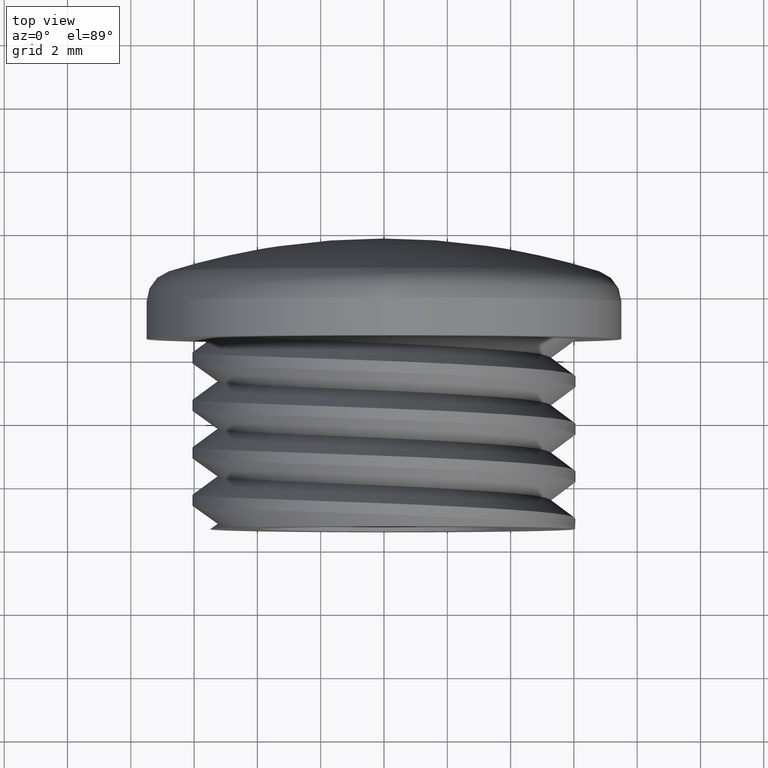
[diagram: clean part render]
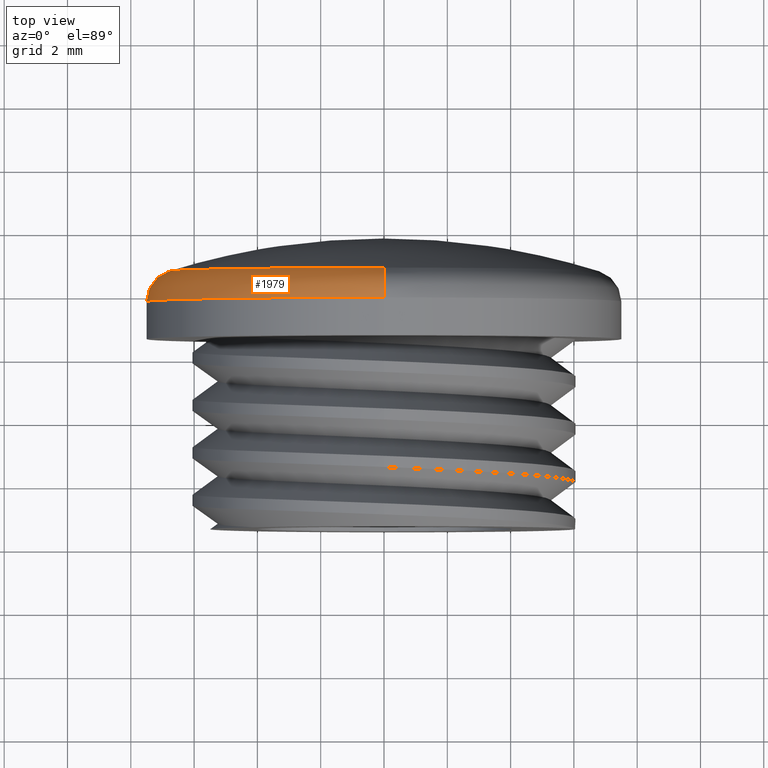
[diagram: same view with one face highlighted and labeled with its STEP entity id]
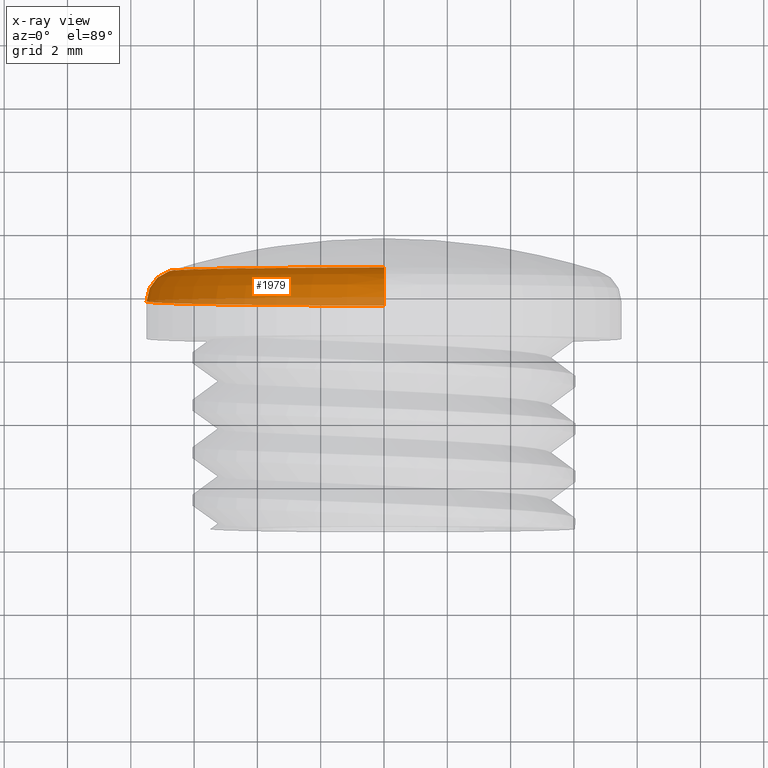
[diagram: x-ray of the same camera — body ghosted, the highlighted face saturated]
A machine part, top view. The second image highlights one B-rep face of the part: STEP entity #1979.
The next image is the same camera in x-ray: the body ghosted, the highlighted face saturated — about 18% of this face is hidden behind the body in this view.
In plain terms, the highlighted toroidal blend (fillet) surface has major radius 6.5 mm and minor (blend) radius 1 mm.
Its self-contained STEP definition (entity closure, byte-faithful):
#873 = DIRECTION ( 'NONE',  ( 0.0000000000000000000, 0.0000000000000000000, -1.000000000000000000 ) ) ;
#875 = CARTESIAN_POINT ( 'NONE',  ( -4.592425496802575900E-016, 8.736994719374898500, 0.0000000000000000000 ) ) ;
#882 = DIRECTION ( 'NONE',  ( -0.0000000000000000000, -1.000000000000000000, 0.0000000000000000000 ) ) ;
#889 = DIRECTION ( 'NONE',  ( -0.0000000000000000000, -1.000000000000000000, 0.0000000000000000000 ) ) ;
#900 = DIRECTION ( 'NONE',  ( 0.0000000000000000000, 0.0000000000000000000, -1.000000000000000000 ) ) ;
#910 = CARTESIAN_POINT ( 'NONE',  ( -4.592425496802575900E-016, 8.736994719374898500, 0.0000000000000000000 ) ) ;
#1070 = DIRECTION ( 'NONE',  ( -0.0000000000000000000, -1.000000000000000000, -0.0000000000000000000 ) ) ;
#1081 = CARTESIAN_POINT ( 'NONE',  ( 0.0000000000000000000, 7.782273396792667200, 0.0000000000000000000 ) ) ;
#1082 = DIRECTION ( 'NONE',  ( 0.0000000000000000000, 0.0000000000000000000, -1.000000000000000000 ) ) ;
#1087 = DIRECTION ( 'NONE',  ( 0.0000000000000000000, 0.0000000000000000000, 1.000000000000000000 ) ) ;
#1104 = DIRECTION ( 'NONE',  ( 1.000000000000000000, -0.0000000000000000000, -1.224646799147353200E-016 ) ) ;
#1105 = DIRECTION ( 'NONE',  ( -1.224646799147353200E-016, 0.0000000000000000000, -1.000000000000000000 ) ) ;
#1120 = CARTESIAN_POINT ( 'NONE',  ( -4.592425496802575900E-016, 7.782273396792667200, -6.499999999999997300 ) ) ;
#1121 = DIRECTION ( 'NONE',  ( -1.000000000000000000, 0.0000000000000000000, 0.0000000000000000000 ) ) ;
#1123 = CARTESIAN_POINT ( 'NONE',  ( 3.367778697655216600E-016, 7.782273396792667200, 6.499999999999997300 ) ) ;
#1136 = FACE_OUTER_BOUND ( 'NONE', #1620, .T. ) ;
#1160 = DIRECTION ( 'NONE',  ( -0.0000000000000000000, -1.000000000000000000, 0.0000000000000000000 ) ) ;
#1171 = DIRECTION ( 'NONE',  ( 0.0000000000000000000, 0.0000000000000000000, -1.000000000000000000 ) ) ;
#1172 = CARTESIAN_POINT ( 'NONE',  ( -4.592425496802575900E-016, 7.782273396792667200, 0.0000000000000000000 ) ) ;
#1620 = EDGE_LOOP ( 'NONE', ( #1733, #1689, #1798, #1777, #1797 ) ) ;
#1689 = ORIENTED_EDGE ( 'NONE', *, *, #1947, .T. ) ;
#1733 = ORIENTED_EDGE ( 'NONE', *, *, #1966, .F. ) ;
#1761 = VERTEX_POINT ( 'NONE', #1800 ) ;
#1777 = ORIENTED_EDGE ( 'NONE', *, *, #1973, .T. ) ;
#1788 = VERTEX_POINT ( 'NONE', #1861 ) ;
#1789 = VERTEX_POINT ( 'NONE', #1851 ) ;
#1797 = ORIENTED_EDGE ( 'NONE', *, *, #1959, .F. ) ;
#1798 = ORIENTED_EDGE ( 'NONE', *, *, #1942, .T. ) ;
#1800 = CARTESIAN_POINT ( 'NONE',  ( 4.592425496802575000E-016, 7.782273396792667200, 7.500000000000001800 ) ) ;
#1840 = VERTEX_POINT ( 'NONE', #1884 ) ;
#1841 = VERTEX_POINT ( 'NONE', #1872 ) ;
#1851 = CARTESIAN_POINT ( 'NONE',  ( -4.592425496802575900E-016, 8.736994719374898500, -6.797501590259358300 ) ) ;
#1861 = CARTESIAN_POINT ( 'NONE',  ( -6.797501590259350300, 8.736994719374898500, 0.0000000000000000000 ) ) ;
#1872 = CARTESIAN_POINT ( 'NONE',  ( -4.592425496802575900E-016, 7.782273396792667200, -7.500000000000001800 ) ) ;
#1884 = CARTESIAN_POINT ( 'NONE',  ( 4.162269282355084900E-016, 8.736994719374898500, 6.797501590259358300 ) ) ;
#1942 = EDGE_CURVE ( 'NONE', #1788, #1789, #2098, .T. ) ;
#1947 = EDGE_CURVE ( 'NONE', #1840, #1788, #2086, .T. ) ;
#1959 = EDGE_CURVE ( 'NONE', #1761, #1841, #2117, .T. ) ;
#1966 = EDGE_CURVE ( 'NONE', #1840, #1761, #2105, .T. ) ;
#1973 = EDGE_CURVE ( 'NONE', #1789, #1841, #2125, .T. ) ;
#1979 = ADVANCED_FACE ( 'NONE', ( #1136 ), #2122, .T. ) ;
#2086 = CIRCLE ( 'NONE', #2103, 6.797501590259358300 ) ;
#2098 = CIRCLE ( 'NONE', #2099, 6.797501590259358300 ) ;
#2099 = AXIS2_PLACEMENT_3D ( 'NONE', #910, #889, #873 ) ;
#2103 = AXIS2_PLACEMENT_3D ( 'NONE', #875, #882, #900 ) ;
#2105 = CIRCLE ( 'NONE', #2123, 1.000000000000006000 ) ;
#2117 = CIRCLE ( 'NONE', #2138, 7.500000000000000000 ) ;
#2122 = TOROIDAL_SURFACE ( 'NONE', #2140, 6.499999999999997300, 1.000000000000006000 ) ;
#2123 = AXIS2_PLACEMENT_3D ( 'NONE', #1123, #1104, #1105 ) ;
#2125 = CIRCLE ( 'NONE', #2129, 1.000000000000006000 ) ;
#2129 = AXIS2_PLACEMENT_3D ( 'NONE', #1120, #1121, #1087 ) ;
#2138 = AXIS2_PLACEMENT_3D ( 'NONE', #1081, #1070, #1082 ) ;
#2140 = AXIS2_PLACEMENT_3D ( 'NONE', #1172, #1160, #1171 ) ;